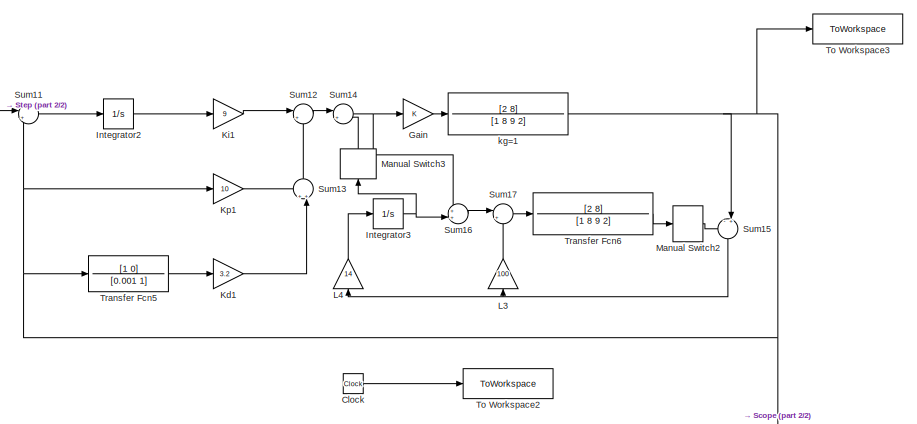
[diagram: root canvas - part 1/2, full width, top band]
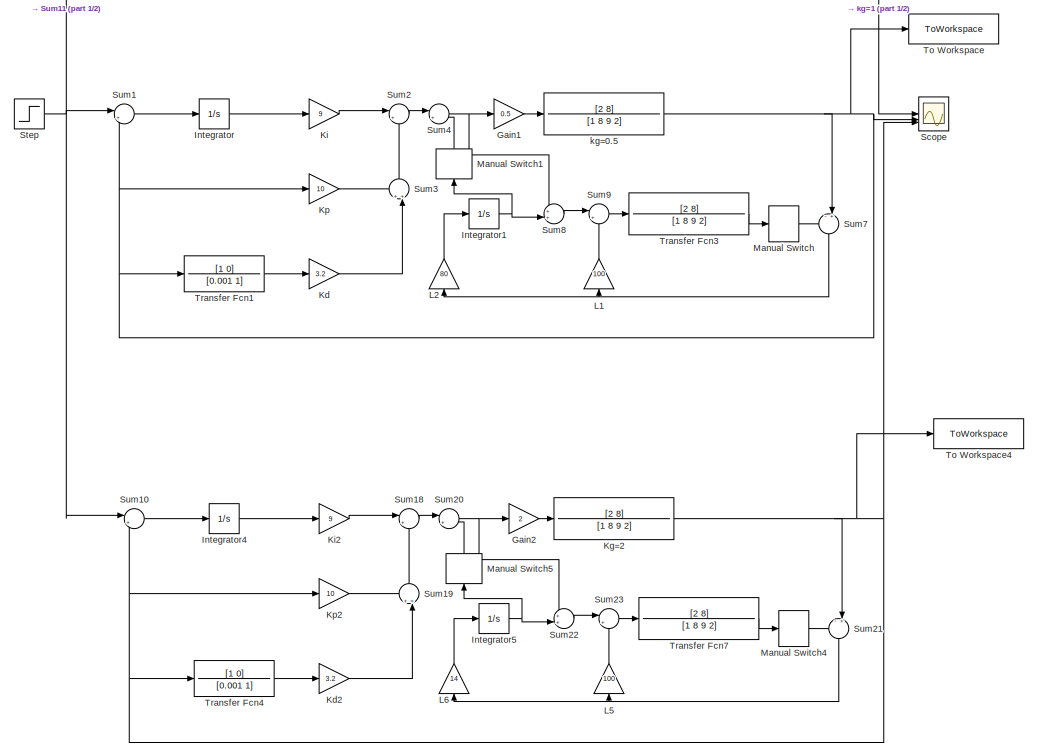
[diagram: root canvas - part 2/2, full width, bottom band]
MODEL slx_f66adbeac060
KIND model
CONFIG AbsTol = auto
CONFIG EnableMultiTasking = off
CONFIG FixedStep = auto
CONFIG MaxStep = auto
CONFIG MinStep = auto
CONFIG RelTol = 1e-3
CONFIG SampleTimeConstraint = Unconstrained
CONFIG SolverName = VariableStepAuto
CONFIG StartTime = 0.0
CONFIG StopTime = 10
BLOCK [Clock] Clock
BLOCK [Gain] Gain
BLOCK [Gain] Gain1
  Gain = 0.5
BLOCK [Gain] Gain2
  Gain = 2
BLOCK [Integrator] Integrator
BLOCK [Integrator] Integrator1
BLOCK [Integrator] Integrator2
BLOCK [Integrator] Integrator3
BLOCK [Integrator] Integrator4
BLOCK [Integrator] Integrator5
BLOCK [Gain] Kd
  Gain = 3.2
BLOCK [Gain] Kd1
  Gain = 3.2
BLOCK [Gain] Kd2
  Gain = 3.2
BLOCK [TransferFcn] Kg=2
  Denominator = [1 8 9 2]
  Numerator = [2 8]
BLOCK [Gain] Ki
  Gain = 9
BLOCK [Gain] Ki1
  Gain = 9
BLOCK [Gain] Ki2
  Gain = 9
BLOCK [Gain] Kp
  Gain = 10
BLOCK [Gain] Kp1
  Gain = 10
BLOCK [Gain] Kp2
  Gain = 10
BLOCK [Gain] L1
  Gain = 100
  NameLocation = right
BLOCK [Gain] L2
  Gain = 80
  NameLocation = right
BLOCK [Gain] L3
  Gain = 100
  NameLocation = right
BLOCK [Gain] L4
  Gain = 14
  NameLocation = right
BLOCK [Gain] L5
  Gain = 100
  NameLocation = right
BLOCK [Gain] L6
  Gain = 14
  NameLocation = right
BLOCK [ManualSwitch] Manual Switch
BLOCK [ManualSwitch] Manual Switch1
  NameLocation = right
BLOCK [ManualSwitch] Manual Switch2
BLOCK [ManualSwitch] Manual Switch3
  NameLocation = right
BLOCK [ManualSwitch] Manual Switch4
BLOCK [ManualSwitch] Manual Switch5
  NameLocation = right
BLOCK [Scope] Scope
  Floating = off
  NumInputPorts = 3
  ScopeSpecificationString = Simulink.scopes.TimeScopeBlockCfg('CurrentConfiguration', extmgr.ConfigurationSet(extmgr.Configuration('Core','General UI',true,'FigureColor',[1 1 1]),extmgr.Configuration('Core','Source UI',true),extmgr.Configuration('Sources','WiredSimulink',true),extmgr.Configuration('Visuals','Time Domain',true,'SerializedDisplays',{struct('MinYLimReal','-0.13107','MaxYLimReal','1.17961','YLabelReal','','MinYL...<+1622ch>
BLOCK [Step] Step
  SampleTime = 0
  Time = 2
BLOCK [Sum] Sum1
  Inputs = |+-
BLOCK [Sum] Sum10
  Inputs = |+-
BLOCK [Sum] Sum11
  Inputs = |+-
BLOCK [Sum] Sum12
  Inputs = |+-
BLOCK [Sum] Sum13
  Inputs = ++|
  NameLocation = left
BLOCK [Sum] Sum14
  Inputs = |+-
BLOCK [Sum] Sum15
  Inputs = -+|
BLOCK [Sum] Sum16
  Inputs = ++|
BLOCK [Sum] Sum17
  Inputs = |++
BLOCK [Sum] Sum18
  Inputs = |+-
BLOCK [Sum] Sum19
  Inputs = ++|
  NameLocation = left
BLOCK [Sum] Sum2
  Inputs = |+-
BLOCK [Sum] Sum20
  Inputs = |+-
BLOCK [Sum] Sum21
  Inputs = -+|
BLOCK [Sum] Sum22
  Inputs = ++|
BLOCK [Sum] Sum23
  Inputs = |++
BLOCK [Sum] Sum3
  Inputs = ++|
  NameLocation = left
BLOCK [Sum] Sum4
  Inputs = |+-
BLOCK [Sum] Sum7
  Inputs = -+|
BLOCK [Sum] Sum8
  Inputs = ++|
BLOCK [Sum] Sum9
  Inputs = |++
BLOCK [ToWorkspace] To Workspace
  FixptAsFi = on
  MaxDataPoints = inf
  SampleTime = -1
  SaveFormat = Timeseries
  VariableName = out1
BLOCK [ToWorkspace] To Workspace2
  FixptAsFi = on
  MaxDataPoints = inf
  SampleTime = -1
  SaveFormat = Timeseries
  VariableName = t
BLOCK [ToWorkspace] To Workspace3
  FixptAsFi = on
  MaxDataPoints = inf
  SampleTime = -1
  SaveFormat = Timeseries
  VariableName = out2
BLOCK [ToWorkspace] To Workspace4
  FixptAsFi = on
  MaxDataPoints = inf
  SampleTime = -1
  SaveFormat = Timeseries
  VariableName = out3
BLOCK [TransferFcn] Transfer Fcn1
  Denominator = [0.001 1]
  Numerator = [1 0]
BLOCK [TransferFcn] Transfer Fcn3
  Denominator = [1 8 9 2]
  Numerator = [2 8]
BLOCK [TransferFcn] Transfer Fcn4
  Denominator = [0.001 1]
  Numerator = [1 0]
BLOCK [TransferFcn] Transfer Fcn5
  Denominator = [0.001 1]
  Numerator = [1 0]
BLOCK [TransferFcn] Transfer Fcn6
  Denominator = [1 8 9 2]
  Numerator = [2 8]
BLOCK [TransferFcn] Transfer Fcn7
  Denominator = [1 8 9 2]
  Numerator = [2 8]
BLOCK [TransferFcn] kg=0.5
  Denominator = [1 8 9 2]
  Numerator = [2 8]
BLOCK [TransferFcn] kg=1
  Denominator = [1 8 9 2]
  Numerator = [2 8]
LINE Clock:1 -> To Workspace2:1
LINE Gain1:1 -> kg=0.5:1
LINE Gain2:1 -> Kg=2:1
LINE Gain:1 -> kg=1:1
NET Integrator1:1 -> Manual Switch1:1, Sum8:2
LINE Integrator2:1 -> Ki1:1
NET Integrator3:1 -> Manual Switch3:1, Sum16:2
LINE Integrator4:1 -> Ki2:1
NET Integrator5:1 -> Manual Switch5:1, Sum22:2
LINE Integrator:1 -> Ki:1
LINE Kd1:1 -> Sum13:2
LINE Kd2:1 -> Sum19:2
LINE Kd:1 -> Sum3:2
NET Kg=2:1 -> Kp2:1, Scope:3, Sum10:2, Sum21:2, To Workspace4:1, Transfer Fcn4:1
LINE Ki1:1 -> Sum12:1
LINE Ki2:1 -> Sum18:1
LINE Ki:1 -> Sum2:1
LINE Kp1:1 -> Sum13:1
LINE Kp2:1 -> Sum19:1
LINE Kp:1 -> Sum3:1
LINE L1:1 -> Sum9:2
LINE L2:1 -> Integrator1:1
LINE L3:1 -> Sum17:2
LINE L4:1 -> Integrator3:1
LINE L5:1 -> Sum23:2
LINE L6:1 -> Integrator5:1
LINE Manual Switch1:1 -> Sum4:2
LINE Manual Switch2:1 -> Sum15:1
LINE Manual Switch3:1 -> Sum14:2
LINE Manual Switch4:1 -> Sum21:1
LINE Manual Switch5:1 -> Sum20:2
LINE Manual Switch:1 -> Sum7:1
NET Step:1 -> Sum10:1, Sum11:1, Sum1:1
LINE Sum10:1 -> Integrator4:1
LINE Sum11:1 -> Integrator2:1
LINE Sum12:1 -> Sum14:1
LINE Sum13:1 -> Sum12:2
NET Sum14:1 -> Gain:1, Sum16:1
NET Sum15:1 -> L3:1, L4:1
LINE Sum16:1 -> Sum17:1
LINE Sum17:1 -> Transfer Fcn6:1
LINE Sum18:1 -> Sum20:1
LINE Sum19:1 -> Sum18:2
LINE Sum1:1 -> Integrator:1
NET Sum20:1 -> Gain2:1, Sum22:1
NET Sum21:1 -> L5:1, L6:1
LINE Sum22:1 -> Sum23:1
LINE Sum23:1 -> Transfer Fcn7:1
LINE Sum2:1 -> Sum4:1
LINE Sum3:1 -> Sum2:2
NET Sum4:1 -> Gain1:1, Sum8:1
NET Sum7:1 -> L1:1, L2:1
LINE Sum8:1 -> Sum9:1
LINE Sum9:1 -> Transfer Fcn3:1
LINE Transfer Fcn1:1 -> Kd:1
LINE Transfer Fcn3:1 -> Manual Switch:1
LINE Transfer Fcn4:1 -> Kd2:1
LINE Transfer Fcn5:1 -> Kd1:1
LINE Transfer Fcn6:1 -> Manual Switch2:1
LINE Transfer Fcn7:1 -> Manual Switch4:1
NET kg=0.5:1 -> Kp:1, Scope:2, Sum1:2, Sum7:2, To Workspace:1, Transfer Fcn1:1
NET kg=1:1 -> Kp1:1, Scope:1, Sum11:2, Sum15:2, To Workspace3:1, Transfer Fcn5:1
note: NET lines group one-source signal fan-out (src -> all destinations, sorted); 1:1 wires keep LINE
